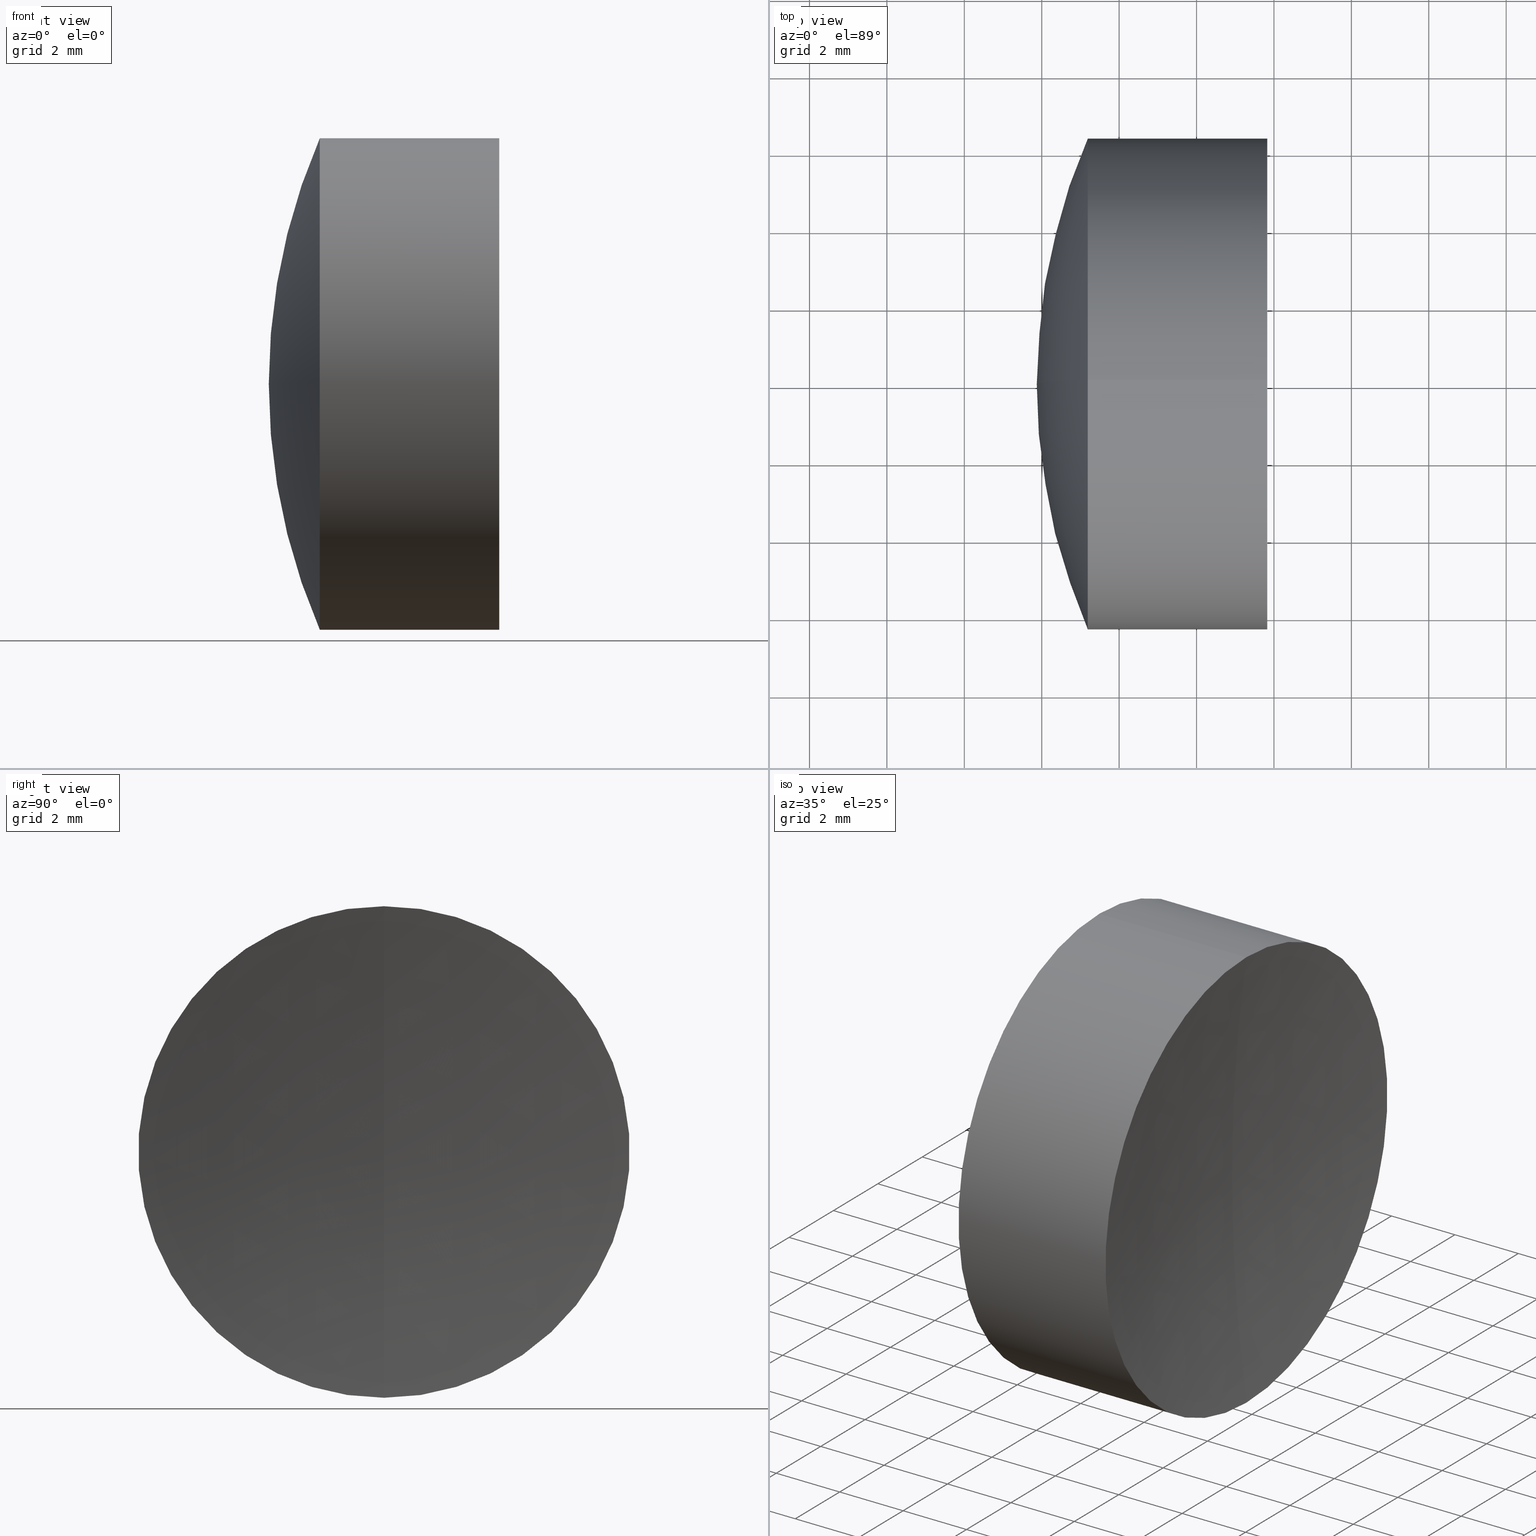
[diagram: canonical four-view strip — front | top / right | iso, engineering-drawing reading convention]
A machine part, canonical four-view strip (front | top / right | iso — engineering-drawing reading convention). The complete STEP part file that produces these views, byte-faithful:
ISO-10303-21;
HEADER;
FILE_DESCRIPTION (( 'STEP AP214' ),
    '1' );
FILE_NAME ('145156.STEP',
    '2019-06-07T02:26:40',
    ( 'user' ),
    ( '΢���й�' ),
    'SwSTEP 2.0',
    'SolidWorks 2016',
    '' );
FILE_SCHEMA (( 'AUTOMOTIVE_DESIGN' ));
ENDSEC;

DATA;
#1 = EDGE_LOOP ( 'NONE', ( #139, #209, #227, #150 ) ) ;
#2 = COLOUR_RGB ( '',1.000000000000000000, 1.000000000000000000, 1.000000000000000000 ) ;
#3 = ORIENTED_EDGE ( 'NONE', *, *, #52, .F. ) ;
#4 = EDGE_CURVE ( 'NONE', #327, #241, #297, .T. ) ;
#5 = ORIENTED_EDGE ( 'NONE', *, *, #185, .F. ) ;
#6 = EDGE_LOOP ( 'NONE', ( #250, #280, #3 ) ) ;
#7 = UNCERTAINTY_MEASURE_WITH_UNIT (LENGTH_MEASURE( 1.000000000000000100E-005 ), #334, 'distance_accuracy_value', 'NONE');
#8 = EDGE_CURVE ( 'NONE', #274, #241, #77, .T. ) ;
#9 = SPHERICAL_SURFACE ( 'NONE', #329, 18.40999999999999700 ) ;
#10 = AXIS2_PLACEMENT_3D ( 'NONE', #308, #201, #259 ) ;
#11 = EDGE_LOOP ( 'NONE', ( #230, #88, #323 ) ) ;
#12 = SURFACE_SIDE_STYLE ('',( #310 ) ) ;
#13 = EDGE_CURVE ( 'NONE', #146, #133, #20, .T. ) ;
#14 = ORIENTED_EDGE ( 'NONE', *, *, #299, .F. ) ;
#15 = SPHERICAL_SURFACE ( 'NONE', #170, 18.40999999999999700 ) ;
#16 = STYLED_ITEM ( 'NONE', ( #240 ), #273 ) ;
#17 = CARTESIAN_POINT ( 'NONE',  ( 75.97197047241489500, 0.0000000000000000000, 0.0000000000000000000 ) ) ;
#18 = SURFACE_SIDE_STYLE ('',( #322 ) ) ;
#19 = CIRCLE ( 'NONE', #121, 6.350000000000005900 ) ;
#20 = CIRCLE ( 'NONE', #214, 6.349999999999990800 ) ;
#21 = DIRECTION ( 'NONE',  ( 0.0000000000000000000, 0.0000000000000000000, 1.000000000000000000 ) ) ;
#22 = CARTESIAN_POINT ( 'NONE',  ( -0.5519199926577972300, 7.776507174585682300E-016, -6.349999999999990800 ) ) ;
#23 = EDGE_LOOP ( 'NONE', ( #75, #219, #154 ) ) ;
#24 = LINE ( 'NONE', #156, #318 ) ;
#25 = LINE ( 'NONE', #307, #317 ) ;
#26 = AXIS2_PLACEMENT_3D ( 'NONE', #347, #195, #67 ) ;
#27 = ORIENTED_EDGE ( 'NONE', *, *, #242, .T. ) ;
#28 = AXIS2_PLACEMENT_3D ( 'NONE', #46, #253, #129 ) ;
#29 = ADVANCED_FACE ( 'NONE', ( #164 ), #15, .F. ) ;
#30 = PRESENTATION_LAYER_ASSIGNMENT (  '', '', ( #16 ) ) ;
#31 = FACE_OUTER_BOUND ( 'NONE', #298, .T. ) ;
#32 = DIRECTION ( 'NONE',  ( -1.000000000000000000, -0.0000000000000000000, -0.0000000000000000000 ) ) ;
#33 = CARTESIAN_POINT ( 'NONE',  ( -0.5519199926577972300, 0.0000000000000000000, 0.0000000000000000000 ) ) ;
#34 = COLOUR_RGB ( '',1.000000000000000000, 1.000000000000000000, 1.000000000000000000 ) ;
#35 = EDGE_CURVE ( 'NONE', #295, #215, #82, .T. ) ;
#36 = ORIENTED_EDGE ( 'NONE', *, *, #8, .F. ) ;
#37 = DIRECTION ( 'NONE',  ( 0.0000000000000000000, 0.0000000000000000000, 1.000000000000000000 ) ) ;
#38 = DIRECTION ( 'NONE',  ( 0.0000000000000000000, 1.000000000000000000, 0.0000000000000000000 ) ) ;
#39 = DIRECTION ( 'NONE',  ( 0.0000000000000000000, 0.0000000000000000000, -1.000000000000000000 ) ) ;
#40 = DIRECTION ( 'NONE',  ( 0.0000000000000000000, -1.000000000000000000, -1.224646799147353200E-016 ) ) ;
#41 = DIRECTION ( 'NONE',  ( 0.0000000000000000000, 0.0000000000000000000, -1.000000000000000000 ) ) ;
#42 = DIRECTION ( 'NONE',  ( 0.0000000000000000000, 0.0000000000000000000, 1.000000000000000000 ) ) ;
#43 =( LENGTH_UNIT ( ) NAMED_UNIT ( * ) SI_UNIT ( .MILLI., .METRE. ) );
#44 = CIRCLE ( 'NONE', #224, 18.40999999999999700 ) ;
#45 =( LENGTH_UNIT ( ) NAMED_UNIT ( * ) SI_UNIT ( .MILLI., .METRE. ) );
#46 = CARTESIAN_POINT ( 'NONE',  ( 75.97197047241489500, 0.0000000000000000000, 0.0000000000000000000 ) ) ;
#47 = CARTESIAN_POINT ( 'NONE',  ( 41.82197047241489700, 0.0000000000000000000, 1.018952376942791700E-014 ) ) ;
#48 = ORIENTED_EDGE ( 'NONE', *, *, #4, .T. ) ;
#49 = EDGE_CURVE ( 'NONE', #215, #295, #222, .T. ) ;
#50 = MECHANICAL_DESIGN_GEOMETRIC_PRESENTATION_REPRESENTATION (  '', ( #16 ), #155 ) ;
#51 = CLOSED_SHELL ( 'NONE', ( #138, #191, #55, #29, #301, #78 ) ) ;
#52 = EDGE_CURVE ( 'NONE', #212, #282, #232, .T. ) ;
#53 = FACE_OUTER_BOUND ( 'NONE', #1, .T. ) ;
#54 = AXIS2_PLACEMENT_3D ( 'NONE', #270, #145, #223 ) ;
#55 = ADVANCED_FACE ( 'NONE', ( #95 ), #306, .F. ) ;
#56 = ORIENTED_EDGE ( 'NONE', *, *, #248, .T. ) ;
#57 = COLOUR_RGB ( '',1.000000000000000000, 1.000000000000000000, 1.000000000000000000 ) ;
#58 = DIRECTION ( 'NONE',  ( 0.0000000000000000000, 0.0000000000000000000, 1.000000000000000000 ) ) ;
#59 =( GEOMETRIC_REPRESENTATION_CONTEXT ( 3 ) GLOBAL_UNCERTAINTY_ASSIGNED_CONTEXT ( ( #279 ) ) GLOBAL_UNIT_ASSIGNED_CONTEXT ( ( #260, #157, #320 ) ) REPRESENTATION_CONTEXT ( 'NONE', 'WORKASPACE' ) );
#60 = CARTESIAN_POINT ( 'NONE',  ( 28.74217880449237900, 0.0000000000000000000, 0.0000000000000000000 ) ) ;
#61 = DIRECTION ( 'NONE',  ( 0.0000000000000000000, -1.000000000000000000, 0.0000000000000000000 ) ) ;
#62 = CARTESIAN_POINT ( 'NONE',  ( 28.74217880449238300, 0.0000000000000000000, 0.0000000000000000000 ) ) ;
#63 = EDGE_LOOP ( 'NONE', ( #5, #70, #130, #166 ) ) ;
#64 = FACE_OUTER_BOUND ( 'NONE', #302, .T. ) ;
#65 = CARTESIAN_POINT ( 'NONE',  ( 28.74217880449238300, -7.776507174585678400E-016, 6.349999999999989000 ) ) ;
#66 = DIRECTION ( 'NONE',  ( -1.000000000000000000, -0.0000000000000000000, -0.0000000000000000000 ) ) ;
#67 = DIRECTION ( 'NONE',  ( 0.0000000000000000000, 0.0000000000000000000, -1.000000000000000000 ) ) ;
#68 =( NAMED_UNIT ( * ) SI_UNIT ( $, .STERADIAN. ) SOLID_ANGLE_UNIT ( ) );
#69 = CLOSED_SHELL ( 'NONE', ( #328, #106, #243, #217, #267, #168 ) ) ;
#70 = ORIENTED_EDGE ( 'NONE', *, *, #35, .T. ) ;
#71 = DIRECTION ( 'NONE',  ( 0.0000000000000000000, 1.224646799147353000E-016, -1.000000000000000000 ) ) ;
#72 = AXIS2_PLACEMENT_3D ( 'NONE', #60, #249, #127 ) ;
#73 = EDGE_CURVE ( 'NONE', #215, #133, #25, .T. ) ;
#74 = ORIENTED_EDGE ( 'NONE', *, *, #76, .T. ) ;
#75 = ORIENTED_EDGE ( 'NONE', *, *, #181, .F. ) ;
#76 = EDGE_CURVE ( 'NONE', #215, #80, #238, .T. ) ;
#77 = CIRCLE ( 'NONE', #187, 18.40999999999999700 ) ;
#78 = ADVANCED_FACE ( 'NONE', ( #104 ), #326, .T. ) ;
#79 = ORIENTED_EDGE ( 'NONE', *, *, #8, .T. ) ;
#80 = VERTEX_POINT ( 'NONE', #93 ) ;
#81 = CARTESIAN_POINT ( 'NONE',  ( 28.74217880449238300, 0.0000000000000000000, 0.0000000000000000000 ) ) ;
#82 = CIRCLE ( 'NONE', #162, 6.349999999999989900 ) ;
#83 = CARTESIAN_POINT ( 'NONE',  ( 11.46197047241490300, 0.0000000000000000000, 2.106783712148525000E-015 ) ) ;
#84 = FILL_AREA_STYLE_COLOUR ( '', #34 ) ;
#85 = PRESENTATION_LAYER_ASSIGNMENT (  '', '', ( #112 ) ) ;
#86 = DIRECTION ( 'NONE',  ( 0.0000000000000000000, 1.000000000000000000, -0.0000000000000000000 ) ) ;
#87 = PRODUCT ( '145156', '145156', '', ( #319 ) ) ;
#88 = ORIENTED_EDGE ( 'NONE', *, *, #107, .T. ) ;
#89 = DIRECTION ( 'NONE',  ( -1.000000000000000000, -0.0000000000000000000, -0.0000000000000000000 ) ) ;
#90 = CIRCLE ( 'NONE', #272, 18.40999999999999700 ) ;
#91 = CARTESIAN_POINT ( 'NONE',  ( 11.46197047241490300, 0.0000000000000000000, 2.106783712148525000E-015 ) ) ;
#92 = DIRECTION ( 'NONE',  ( -1.000000000000000000, -0.0000000000000000000, -0.0000000000000000000 ) ) ;
#93 = CARTESIAN_POINT ( 'NONE',  ( 31.37197047241489800, 0.0000000000000000000, -2.730962362098597700E-015 ) ) ;
#94 =( NAMED_UNIT ( * ) PLANE_ANGLE_UNIT ( ) SI_UNIT ( $, .RADIAN. ) );
#95 = FACE_OUTER_BOUND ( 'NONE', #11, .T. ) ;
#96 = CARTESIAN_POINT ( 'NONE',  ( 28.74217880449237900, 7.776507174585701000E-016, -6.350000000000006800 ) ) ;
#97 = FACE_OUTER_BOUND ( 'NONE', #309, .T. ) ;
#98 = CARTESIAN_POINT ( 'NONE',  ( 0.0000000000000000000, 0.0000000000000000000, 0.0000000000000000000 ) ) ;
#99 = DIRECTION ( 'NONE',  ( -1.000000000000000000, -0.0000000000000000000, -0.0000000000000000000 ) ) ;
#100 = SURFACE_STYLE_USAGE ( .BOTH. , #292 ) ;
#101 = ORIENTED_EDGE ( 'NONE', *, *, #248, .F. ) ;
#102 = SURFACE_STYLE_FILL_AREA ( #131 ) ;
#103 = EDGE_CURVE ( 'NONE', #295, #80, #182, .T. ) ;
#104 = FACE_OUTER_BOUND ( 'NONE', #63, .T. ) ;
#105 = EDGE_LOOP ( 'NONE', ( #338, #180, #144 ) ) ;
#106 = ADVANCED_FACE ( 'NONE', ( #31 ), #110, .T. ) ;
#107 = EDGE_CURVE ( 'NONE', #123, #133, #189, .T. ) ;
#108 = MECHANICAL_DESIGN_GEOMETRIC_PRESENTATION_REPRESENTATION (  '', ( #112 ), #252 ) ;
#109 = DIRECTION ( 'NONE',  ( 0.0000000000000000000, 0.0000000000000000000, 1.000000000000000000 ) ) ;
#110 = CYLINDRICAL_SURFACE ( 'NONE', #211, 6.350000000000006800 ) ;
#111 = DIRECTION ( 'NONE',  ( 0.0000000000000000000, 0.0000000000000000000, 1.000000000000000000 ) ) ;
#112 = STYLED_ITEM ( 'NONE', ( #208 ), #296 ) ;
#113 = CARTESIAN_POINT ( 'NONE',  ( -0.8160621761658039000, 0.0000000000000000000, 0.0000000000000000000 ) ) ;
#114 = ORIENTED_EDGE ( 'NONE', *, *, #103, .T. ) ;
#115 =( NAMED_UNIT ( * ) SI_UNIT ( $, .STERADIAN. ) SOLID_ANGLE_UNIT ( ) );
#116 = DIRECTION ( 'NONE',  ( 0.0000000000000000000, 0.0000000000000000000, 1.000000000000000000 ) ) ;
#117 = CARTESIAN_POINT ( 'NONE',  ( 75.97197047241489500, 0.0000000000000000000, 0.0000000000000000000 ) ) ;
#118 = UNCERTAINTY_MEASURE_WITH_UNIT (LENGTH_MEASURE( 1.000000000000000100E-005 ), #43, 'distance_accuracy_value', 'NONE');
#119 = DIRECTION ( 'NONE',  ( 0.0000000000000000000, 1.000000000000000000, -0.0000000000000000000 ) ) ;
#120 = DIRECTION ( 'NONE',  ( 0.0000000000000000000, 1.000000000000000000, 0.0000000000000000000 ) ) ;
#121 = AXIS2_PLACEMENT_3D ( 'NONE', #251, #89, #337 ) ;
#122 = CARTESIAN_POINT ( 'NONE',  ( 28.74217880449238300, 0.0000000000000000000, -6.349999999999987200 ) ) ;
#123 = VERTEX_POINT ( 'NONE', #179 ) ;
#124 = LINE ( 'NONE', #22, #134 ) ;
#125 = FACE_OUTER_BOUND ( 'NONE', #6, .T. ) ;
#126 = CARTESIAN_POINT ( 'NONE',  ( -0.8160621761658039000, 0.0000000000000000000, 0.0000000000000000000 ) ) ;
#127 = DIRECTION ( 'NONE',  ( 0.0000000000000000000, 0.0000000000000000000, 1.000000000000000000 ) ) ;
#128 = DIRECTION ( 'NONE',  ( 1.000000000000000000, 0.0000000000000000000, 0.0000000000000000000 ) ) ;
#129 = DIRECTION ( 'NONE',  ( 0.0000000000000000000, 0.0000000000000000000, -1.000000000000000000 ) ) ;
#130 = ORIENTED_EDGE ( 'NONE', *, *, #73, .T. ) ;
#131 = FILL_AREA_STYLE ('',( #233 ) ) ;
#132 = EDGE_CURVE ( 'NONE', #327, #213, #330, .T. ) ;
#133 = VERTEX_POINT ( 'NONE', #65 ) ;
#134 = VECTOR ( 'NONE', #99, 1000.000000000000000 ) ;
#135 = CYLINDRICAL_SURFACE ( 'NONE', #262, 6.350000000000006800 ) ;
#136 = UNCERTAINTY_MEASURE_WITH_UNIT (LENGTH_MEASURE( 1.000000000000000100E-005 ), #45, 'distance_accuracy_value', 'NONE');
#137 = EDGE_CURVE ( 'NONE', #123, #146, #44, .T. ) ;
#138 = ADVANCED_FACE ( 'NONE', ( #53 ), #193, .T. ) ;
#139 = ORIENTED_EDGE ( 'NONE', *, *, #49, .T. ) ;
#140 = ORIENTED_EDGE ( 'NONE', *, *, #132, .F. ) ;
#141 = CARTESIAN_POINT ( 'NONE',  ( 31.82633082363418000, 0.0000000000000000000, 0.0000000000000000000 ) ) ;
#142 = DIRECTION ( 'NONE',  ( -0.0000000000000000000, 1.000000000000000000, 1.224646799147353200E-016 ) ) ;
#143 = AXIS2_PLACEMENT_3D ( 'NONE', #244, #173, #196 ) ;
#144 = ORIENTED_EDGE ( 'NONE', *, *, #13, .T. ) ;
#145 = DIRECTION ( 'NONE',  ( -0.0000000000000000000, -1.000000000000000000, -0.0000000000000000000 ) ) ;
#146 = VERTEX_POINT ( 'NONE', #122 ) ;
#147 =( NAMED_UNIT ( * ) PLANE_ANGLE_UNIT ( ) SI_UNIT ( $, .RADIAN. ) );
#148 = AXIS2_PLACEMENT_3D ( 'NONE', #315, #152, #284 ) ;
#149 = FILL_AREA_STYLE_COLOUR ( '', #2 ) ;
#150 = ORIENTED_EDGE ( 'NONE', *, *, #73, .F. ) ;
#151 = DIRECTION ( 'NONE',  ( 0.0000000000000000000, 0.0000000000000000000, 1.000000000000000000 ) ) ;
#152 = DIRECTION ( 'NONE',  ( 0.0000000000000000000, -1.000000000000000000, -1.224646799147353200E-016 ) ) ;
#153 = APPLICATION_CONTEXT ( 'automotive_design' ) ;
#154 = ORIENTED_EDGE ( 'NONE', *, *, #52, .T. ) ;
#155 =( GEOMETRIC_REPRESENTATION_CONTEXT ( 3 ) GLOBAL_UNCERTAINTY_ASSIGNED_CONTEXT ( ( #136 ) ) GLOBAL_UNIT_ASSIGNED_CONTEXT ( ( #45, #231, #68 ) ) REPRESENTATION_CONTEXT ( 'NONE', 'WORKASPACE' ) );
#156 = CARTESIAN_POINT ( 'NONE',  ( -0.8160621761658039000, 7.776507174585701000E-016, -6.350000000000006800 ) ) ;
#157 =( NAMED_UNIT ( * ) PLANE_ANGLE_UNIT ( ) SI_UNIT ( $, .RADIAN. ) );
#158 = AXIS2_PLACEMENT_3D ( 'NONE', #332, #86, #333 ) ;
#159 = ORIENTED_EDGE ( 'NONE', *, *, #216, .F. ) ;
#160 = SHAPE_DEFINITION_REPRESENTATION ( #325, #273 ) ;
#161 = PRESENTATION_LAYER_ASSIGNMENT (  '', '', ( #198 ) ) ;
#162 = AXIS2_PLACEMENT_3D ( 'NONE', #141, #303, #109 ) ;
#163 = EDGE_LOOP ( 'NONE', ( #269, #275, #114 ) ) ;
#164 = FACE_OUTER_BOUND ( 'NONE', #105, .T. ) ;
#165 = AXIS2_PLACEMENT_3D ( 'NONE', #221, #305, #111 ) ;
#166 = ORIENTED_EDGE ( 'NONE', *, *, #13, .F. ) ;
#167 = SPHERICAL_SURFACE ( 'NONE', #10, 15.94999999999999900 ) ;
#168 = ADVANCED_FACE ( 'NONE', ( #264 ), #246, .T. ) ;
#169 = PRESENTATION_STYLE_ASSIGNMENT (( #100 ) ) ;
#170 = AXIS2_PLACEMENT_3D ( 'NONE', #271, #172, #220 ) ;
#171 = CIRCLE ( 'NONE', #237, 15.94999999999999900 ) ;
#172 = DIRECTION ( 'NONE',  ( -0.0000000000000000000, -1.000000000000000000, -0.0000000000000000000 ) ) ;
#173 = DIRECTION ( 'NONE',  ( -1.000000000000000000, -0.0000000000000000000, -0.0000000000000000000 ) ) ;
#174 = DIRECTION ( 'NONE',  ( -1.000000000000000000, -0.0000000000000000000, -0.0000000000000000000 ) ) ;
#175 = EDGE_LOOP ( 'NONE', ( #101, #79, #192 ) ) ;
#176 = SURFACE_STYLE_USAGE ( .BOTH. , #12 ) ;
#177 = CARTESIAN_POINT ( 'NONE',  ( 29.87197047241489800, 0.0000000000000000000, 3.234071090763663400E-015 ) ) ;
#178 = DIRECTION ( 'NONE',  ( -1.000000000000000000, -0.0000000000000000000, -0.0000000000000000000 ) ) ;
#179 = CARTESIAN_POINT ( 'NONE',  ( 29.87197047241489800, 0.0000000000000000000, 9.794963335333864000E-016 ) ) ;
#180 = ORIENTED_EDGE ( 'NONE', *, *, #137, .T. ) ;
#181 = EDGE_CURVE ( 'NONE', #213, #282, #171, .T. ) ;
#182 = CIRCLE ( 'NONE', #229, 44.60000000000000100 ) ;
#183 = DIRECTION ( 'NONE',  ( 0.0000000000000000000, 0.0000000000000000000, 1.000000000000000000 ) ) ;
#184 = FILL_AREA_STYLE ('',( #84 ) ) ;
#185 = EDGE_CURVE ( 'NONE', #295, #146, #124, .T. ) ;
#186 = ORIENTED_EDGE ( 'NONE', *, *, #216, .T. ) ;
#187 = AXIS2_PLACEMENT_3D ( 'NONE', #331, #142, #304 ) ;
#188 = MANIFOLD_SOLID_BREP ( '��ת1', #69 ) ;
#189 = CIRCLE ( 'NONE', #343, 18.40999999999999700 ) ;
#190 = MECHANICAL_DESIGN_GEOMETRIC_PRESENTATION_REPRESENTATION (  '', ( #198 ), #59 ) ;
#191 = ADVANCED_FACE ( 'NONE', ( #64 ), #339, .F. ) ;
#192 = ORIENTED_EDGE ( 'NONE', *, *, #4, .F. ) ;
#193 = CYLINDRICAL_SURFACE ( 'NONE', #218, 6.349999999999990800 ) ;
#194 = PRODUCT_DEFINITION_CONTEXT ( 'detailed design', #153, 'design' ) ;
#195 = DIRECTION ( 'NONE',  ( -0.0000000000000000000, -1.000000000000000000, -0.0000000000000000000 ) ) ;
#196 = DIRECTION ( 'NONE',  ( 0.0000000000000000000, 0.0000000000000000000, 1.000000000000000000 ) ) ;
#197 = FILL_AREA_STYLE ('',( #149 ) ) ;
#198 = STYLED_ITEM ( 'NONE', ( #169 ), #188 ) ;
#199 = DIRECTION ( 'NONE',  ( 0.0000000000000000000, 0.0000000000000000000, 1.000000000000000000 ) ) ;
#200 = CARTESIAN_POINT ( 'NONE',  ( 25.87197047241490100, 0.0000000000000000000, 9.212867947107902300E-015 ) ) ;
#201 = DIRECTION ( 'NONE',  ( -0.0000000000000000000, -1.000000000000000000, -0.0000000000000000000 ) ) ;
#202 = ORIENTED_EDGE ( 'NONE', *, *, #321, .F. ) ;
#203 = CARTESIAN_POINT ( 'NONE',  ( 11.46197047241490300, 0.0000000000000000000, 2.106783712148525000E-015 ) ) ;
#204 = SPHERICAL_SURFACE ( 'NONE', #26, 15.94999999999999900 ) ;
#205 = DIRECTION ( 'NONE',  ( 0.0000000000000000000, 1.000000000000000000, -0.0000000000000000000 ) ) ;
#206 = DIRECTION ( 'NONE',  ( 0.0000000000000000000, 0.0000000000000000000, 1.000000000000000000 ) ) ;
#207 = SURFACE_STYLE_USAGE ( .BOTH. , #18 ) ;
#208 = PRESENTATION_STYLE_ASSIGNMENT (( #176 ) ) ;
#209 = ORIENTED_EDGE ( 'NONE', *, *, #185, .T. ) ;
#210 = CARTESIAN_POINT ( 'NONE',  ( 27.19049754587739900, 0.0000000000000000000, -6.350000000000000500 ) ) ;
#211 = AXIS2_PLACEMENT_3D ( 'NONE', #126, #66, #42 ) ;
#212 = VERTEX_POINT ( 'NONE', #210 ) ;
#213 = VERTEX_POINT ( 'NONE', #290 ) ;
#214 = AXIS2_PLACEMENT_3D ( 'NONE', #81, #245, #58 ) ;
#215 = VERTEX_POINT ( 'NONE', #345 ) ;
#216 = EDGE_CURVE ( 'NONE', #241, #212, #24, .T. ) ;
#217 = ADVANCED_FACE ( 'NONE', ( #291 ), #204, .T. ) ;
#218 = AXIS2_PLACEMENT_3D ( 'NONE', #33, #313, #151 ) ;
#219 = ORIENTED_EDGE ( 'NONE', *, *, #321, .T. ) ;
#220 = DIRECTION ( 'NONE',  ( 0.0000000000000000000, 0.0000000000000000000, -1.000000000000000000 ) ) ;
#221 = CARTESIAN_POINT ( 'NONE',  ( 28.74217880449237900, 0.0000000000000000000, 0.0000000000000000000 ) ) ;
#222 = CIRCLE ( 'NONE', #143, 6.349999999999989900 ) ;
#223 = DIRECTION ( 'NONE',  ( 0.0000000000000000000, 0.0000000000000000000, -1.000000000000000000 ) ) ;
#224 = AXIS2_PLACEMENT_3D ( 'NONE', #91, #119, #199 ) ;
#225 = DIRECTION ( 'NONE',  ( -1.000000000000000000, -0.0000000000000000000, -0.0000000000000000000 ) ) ;
#226 = DIRECTION ( 'NONE',  ( -1.000000000000000000, -0.0000000000000000000, -0.0000000000000000000 ) ) ;
#227 = ORIENTED_EDGE ( 'NONE', *, *, #287, .F. ) ;
#228 = DIRECTION ( 'NONE',  ( 0.0000000000000000000, 1.224646799147353200E-016, -1.000000000000000000 ) ) ;
#229 = AXIS2_PLACEMENT_3D ( 'NONE', #17, #205, #340 ) ;
#230 = ORIENTED_EDGE ( 'NONE', *, *, #137, .F. ) ;
#231 =( NAMED_UNIT ( * ) PLANE_ANGLE_UNIT ( ) SI_UNIT ( $, .RADIAN. ) );
#232 = CIRCLE ( 'NONE', #158, 15.94999999999999900 ) ;
#233 = FILL_AREA_STYLE_COLOUR ( '', #57 ) ;
#234 = DIRECTION ( 'NONE',  ( 0.0000000000000000000, -1.000000000000000000, -1.224646799147353200E-016 ) ) ;
#235 = ORIENTED_EDGE ( 'NONE', *, *, #103, .F. ) ;
#236 = CIRCLE ( 'NONE', #72, 6.350000000000006800 ) ;
#237 = AXIS2_PLACEMENT_3D ( 'NONE', #47, #234, #71 ) ;
#238 = CIRCLE ( 'NONE', #148, 44.60000000000000100 ) ;
#239 = AXIS2_PLACEMENT_3D ( 'NONE', #62, #226, #37 ) ;
#240 = PRESENTATION_STYLE_ASSIGNMENT (( #207 ) ) ;
#241 = VERTEX_POINT ( 'NONE', #96 ) ;
#242 = EDGE_CURVE ( 'NONE', #241, #327, #236, .T. ) ;
#243 = ADVANCED_FACE ( 'NONE', ( #125 ), #167, .T. ) ;
#244 = CARTESIAN_POINT ( 'NONE',  ( 31.82633082363418000, 0.0000000000000000000, 0.0000000000000000000 ) ) ;
#245 = DIRECTION ( 'NONE',  ( -1.000000000000000000, -0.0000000000000000000, -0.0000000000000000000 ) ) ;
#246 = SPHERICAL_SURFACE ( 'NONE', #293, 18.40999999999999700 ) ;
#247 = FACE_OUTER_BOUND ( 'NONE', #163, .T. ) ;
#248 = EDGE_CURVE ( 'NONE', #274, #327, #90, .T. ) ;
#249 = DIRECTION ( 'NONE',  ( -1.000000000000000000, -0.0000000000000000000, -0.0000000000000000000 ) ) ;
#250 = ORIENTED_EDGE ( 'NONE', *, *, #299, .T. ) ;
#251 = CARTESIAN_POINT ( 'NONE',  ( 27.19049754587739500, 0.0000000000000000000, 0.0000000000000000000 ) ) ;
#252 =( GEOMETRIC_REPRESENTATION_CONTEXT ( 3 ) GLOBAL_UNCERTAINTY_ASSIGNED_CONTEXT ( ( #7 ) ) GLOBAL_UNIT_ASSIGNED_CONTEXT ( ( #334, #147, #115 ) ) REPRESENTATION_CONTEXT ( 'NONE', 'WORKASPACE' ) );
#253 = DIRECTION ( 'NONE',  ( -0.0000000000000000000, -1.000000000000000000, -0.0000000000000000000 ) ) ;
#254 = DIRECTION ( 'NONE',  ( 0.0000000000000000000, 0.0000000000000000000, 1.000000000000000000 ) ) ;
#255 = CARTESIAN_POINT ( 'NONE',  ( 11.46197047241490300, 0.0000000000000000000, 2.106783712148525000E-015 ) ) ;
#256 = ORIENTED_EDGE ( 'NONE', *, *, #242, .F. ) ;
#257 = VECTOR ( 'NONE', #178, 1000.000000000000000 ) ;
#258 = AXIS2_PLACEMENT_3D ( 'NONE', #341, #276, #183 ) ;
#259 = DIRECTION ( 'NONE',  ( 0.0000000000000000000, 0.0000000000000000000, -1.000000000000000000 ) ) ;
#260 =( LENGTH_UNIT ( ) NAMED_UNIT ( * ) SI_UNIT ( .MILLI., .METRE. ) );
#261 = EDGE_LOOP ( 'NONE', ( #36, #56, #256 ) ) ;
#262 = AXIS2_PLACEMENT_3D ( 'NONE', #113, #225, #21 ) ;
#263 = ORIENTED_EDGE ( 'NONE', *, *, #132, .T. ) ;
#264 = FACE_OUTER_BOUND ( 'NONE', #261, .T. ) ;
#265 = SPHERICAL_SURFACE ( 'NONE', #294, 44.60000000000000100 ) ;
#266 = CIRCLE ( 'NONE', #239, 6.349999999999990800 ) ;
#267 = ADVANCED_FACE ( 'NONE', ( #97 ), #135, .T. ) ;
#268 = AXIS2_PLACEMENT_3D ( 'NONE', #281, #92, #254 ) ;
#269 = ORIENTED_EDGE ( 'NONE', *, *, #76, .F. ) ;
#270 = CARTESIAN_POINT ( 'NONE',  ( 11.46197047241490300, 0.0000000000000000000, 2.106783712148525000E-015 ) ) ;
#271 = CARTESIAN_POINT ( 'NONE',  ( 11.46197047241490300, 0.0000000000000000000, 2.106783712148525000E-015 ) ) ;
#272 = AXIS2_PLACEMENT_3D ( 'NONE', #83, #61, #39 ) ;
#273 = ADVANCED_BREP_SHAPE_REPRESENTATION ( '145156', ( #188, #296, #277 ), #312 ) ;
#274 = VERTEX_POINT ( 'NONE', #177 ) ;
#275 = ORIENTED_EDGE ( 'NONE', *, *, #35, .F. ) ;
#276 = DIRECTION ( 'NONE',  ( -1.000000000000000000, -0.0000000000000000000, -0.0000000000000000000 ) ) ;
#277 = AXIS2_PLACEMENT_3D ( 'NONE', #98, #286, #128 ) ;
#278 = CARTESIAN_POINT ( 'NONE',  ( 11.46197047241490300, 0.0000000000000000000, 2.106783712148525000E-015 ) ) ;
#279 = UNCERTAINTY_MEASURE_WITH_UNIT (LENGTH_MEASURE( 1.000000000000000100E-005 ), #260, 'distance_accuracy_value', 'NONE');
#280 = ORIENTED_EDGE ( 'NONE', *, *, #181, .T. ) ;
#281 = CARTESIAN_POINT ( 'NONE',  ( 27.19049754587739500, 0.0000000000000000000, 0.0000000000000000000 ) ) ;
#282 = VERTEX_POINT ( 'NONE', #200 ) ;
#283 = CARTESIAN_POINT ( 'NONE',  ( -0.8160621761658039000, 0.0000000000000000000, 6.350000000000006800 ) ) ;
#284 = DIRECTION ( 'NONE',  ( 0.0000000000000000000, 1.224646799147353200E-016, -1.000000000000000000 ) ) ;
#285 =( NAMED_UNIT ( * ) SI_UNIT ( $, .STERADIAN. ) SOLID_ANGLE_UNIT ( ) );
#286 = DIRECTION ( 'NONE',  ( 0.0000000000000000000, 0.0000000000000000000, 1.000000000000000000 ) ) ;
#287 = EDGE_CURVE ( 'NONE', #133, #146, #266, .T. ) ;
#288 = CIRCLE ( 'NONE', #268, 6.350000000000005900 ) ;
#289 = ORIENTED_EDGE ( 'NONE', *, *, #49, .F. ) ;
#290 = CARTESIAN_POINT ( 'NONE',  ( 27.19049754587739900, -7.776507174585694100E-016, 6.350000000000011200 ) ) ;
#291 = FACE_OUTER_BOUND ( 'NONE', #23, .T. ) ;
#292 = SURFACE_SIDE_STYLE ('',( #102 ) ) ;
#293 = AXIS2_PLACEMENT_3D ( 'NONE', #278, #38, #116 ) ;
#294 = AXIS2_PLACEMENT_3D ( 'NONE', #117, #311, #41 ) ;
#295 = VERTEX_POINT ( 'NONE', #336 ) ;
#296 = MANIFOLD_SOLID_BREP ( '��ת2', #51 ) ;
#297 = CIRCLE ( 'NONE', #165, 6.350000000000006800 ) ;
#298 = EDGE_LOOP ( 'NONE', ( #48, #186, #202, #140 ) ) ;
#299 = EDGE_CURVE ( 'NONE', #212, #213, #19, .T. ) ;
#300 = PRODUCT_DEFINITION ( 'δ֪', '', #324, #194 ) ;
#301 = ADVANCED_FACE ( 'NONE', ( #247 ), #265, .F. ) ;
#302 = EDGE_LOOP ( 'NONE', ( #289, #74, #235 ) ) ;
#303 = DIRECTION ( 'NONE',  ( -1.000000000000000000, -0.0000000000000000000, -0.0000000000000000000 ) ) ;
#304 = DIRECTION ( 'NONE',  ( 0.0000000000000000000, -1.224646799147353200E-016, 1.000000000000000000 ) ) ;
#305 = DIRECTION ( 'NONE',  ( -1.000000000000000000, -0.0000000000000000000, -0.0000000000000000000 ) ) ;
#306 = SPHERICAL_SURFACE ( 'NONE', #54, 18.40999999999999700 ) ;
#307 = CARTESIAN_POINT ( 'NONE',  ( -0.5519199926577972300, 0.0000000000000000000, 6.349999999999990800 ) ) ;
#308 = CARTESIAN_POINT ( 'NONE',  ( 41.82197047241489700, 0.0000000000000000000, 1.018952376942791700E-014 ) ) ;
#309 = EDGE_LOOP ( 'NONE', ( #159, #27, #263, #14 ) ) ;
#310 = SURFACE_STYLE_FILL_AREA ( #197 ) ;
#311 = DIRECTION ( 'NONE',  ( -0.0000000000000000000, -1.000000000000000000, -0.0000000000000000000 ) ) ;
#312 =( GEOMETRIC_REPRESENTATION_CONTEXT ( 3 ) GLOBAL_UNCERTAINTY_ASSIGNED_CONTEXT ( ( #118 ) ) GLOBAL_UNIT_ASSIGNED_CONTEXT ( ( #43, #94, #285 ) ) REPRESENTATION_CONTEXT ( 'NONE', 'WORKASPACE' ) );
#313 = DIRECTION ( 'NONE',  ( -1.000000000000000000, -0.0000000000000000000, -0.0000000000000000000 ) ) ;
#314 = CARTESIAN_POINT ( 'NONE',  ( 28.74217880449237900, 0.0000000000000000000, 6.350000000000006800 ) ) ;
#315 = CARTESIAN_POINT ( 'NONE',  ( 75.97197047241489500, 0.0000000000000000000, 0.0000000000000000000 ) ) ;
#316 = APPLICATION_PROTOCOL_DEFINITION ( 'draft international standard', 'automotive_design', 1998, #342 ) ;
#317 = VECTOR ( 'NONE', #32, 1000.000000000000000 ) ;
#318 = VECTOR ( 'NONE', #174, 1000.000000000000000 ) ;
#319 = PRODUCT_CONTEXT ( 'NONE', #342, 'mechanical' ) ;
#320 =( NAMED_UNIT ( * ) SI_UNIT ( $, .STERADIAN. ) SOLID_ANGLE_UNIT ( ) );
#321 = EDGE_CURVE ( 'NONE', #213, #212, #288, .T. ) ;
#322 = SURFACE_STYLE_FILL_AREA ( #184 ) ;
#323 = ORIENTED_EDGE ( 'NONE', *, *, #287, .T. ) ;
#324 = PRODUCT_DEFINITION_FORMATION_WITH_SPECIFIED_SOURCE ( '�κ�', '', #87, .NOT_KNOWN. ) ;
#325 = PRODUCT_DEFINITION_SHAPE ( 'NONE', 'NONE',  #300 ) ;
#326 = CYLINDRICAL_SURFACE ( 'NONE', #258, 6.349999999999990800 ) ;
#327 = VERTEX_POINT ( 'NONE', #314 ) ;
#328 = ADVANCED_FACE ( 'NONE', ( #346 ), #9, .T. ) ;
#329 = AXIS2_PLACEMENT_3D ( 'NONE', #203, #120, #206 ) ;
#330 = LINE ( 'NONE', #283, #257 ) ;
#331 = CARTESIAN_POINT ( 'NONE',  ( 11.46197047241490300, 0.0000000000000000000, 2.106783712148525000E-015 ) ) ;
#332 = CARTESIAN_POINT ( 'NONE',  ( 41.82197047241489700, 0.0000000000000000000, 1.018952376942791700E-014 ) ) ;
#333 = DIRECTION ( 'NONE',  ( 0.0000000000000000000, 0.0000000000000000000, 1.000000000000000000 ) ) ;
#334 =( LENGTH_UNIT ( ) NAMED_UNIT ( * ) SI_UNIT ( .MILLI., .METRE. ) );
#335 = PRODUCT_RELATED_PRODUCT_CATEGORY ( 'part', '', ( #87 ) ) ;
#336 = CARTESIAN_POINT ( 'NONE',  ( 31.82633082363418000, 0.0000000000000000000, -6.349999999999999600 ) ) ;
#337 = DIRECTION ( 'NONE',  ( 0.0000000000000000000, 0.0000000000000000000, 1.000000000000000000 ) ) ;
#338 = ORIENTED_EDGE ( 'NONE', *, *, #107, .F. ) ;
#339 = SPHERICAL_SURFACE ( 'NONE', #28, 44.60000000000000100 ) ;
#340 = DIRECTION ( 'NONE',  ( 0.0000000000000000000, 0.0000000000000000000, 1.000000000000000000 ) ) ;
#341 = CARTESIAN_POINT ( 'NONE',  ( -0.5519199926577972300, 0.0000000000000000000, 0.0000000000000000000 ) ) ;
#342 = APPLICATION_CONTEXT ( 'automotive_design' ) ;
#343 = AXIS2_PLACEMENT_3D ( 'NONE', #255, #40, #228 ) ;
#344 = APPLICATION_PROTOCOL_DEFINITION ( 'draft international standard', 'automotive_design', 1998, #153 ) ;
#345 = CARTESIAN_POINT ( 'NONE',  ( 31.82633082363418000, -7.776507174585692200E-016, 6.349999999999999600 ) ) ;
#346 = FACE_OUTER_BOUND ( 'NONE', #175, .T. ) ;
#347 = CARTESIAN_POINT ( 'NONE',  ( 41.82197047241489700, 0.0000000000000000000, 1.018952376942791700E-014 ) ) ;
ENDSEC;
END-ISO-10303-21;
